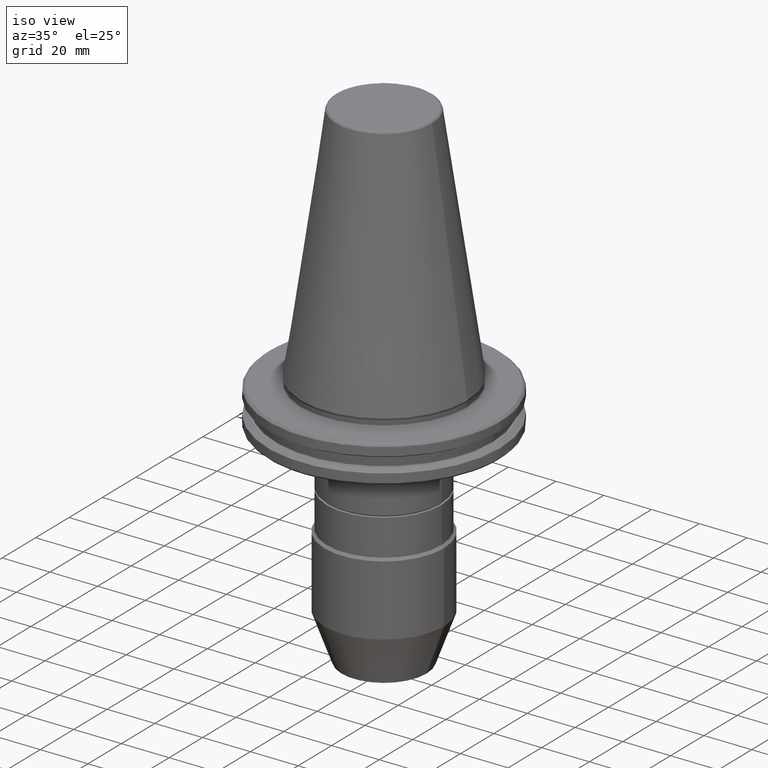
[diagram: clean part render]
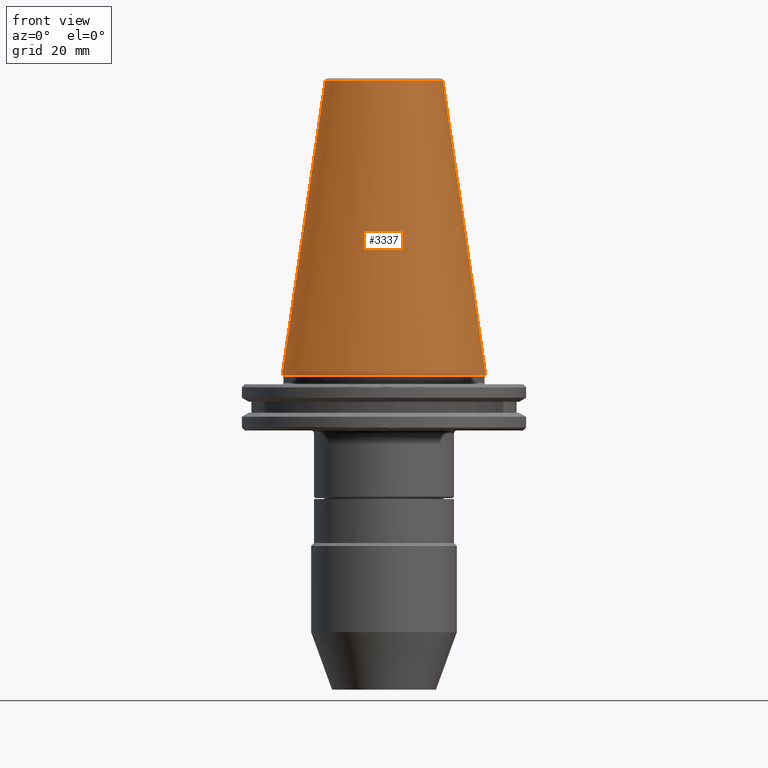
[diagram: tour spotlight — one face highlighted and labeled with its STEP entity id]
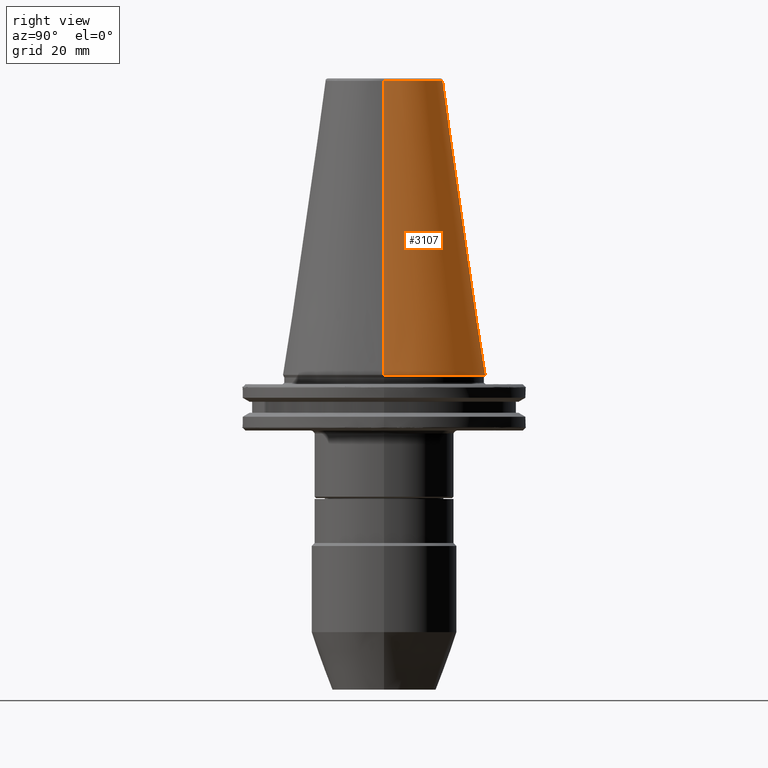
[diagram: tour spotlight — one face highlighted and labeled with its STEP entity id]
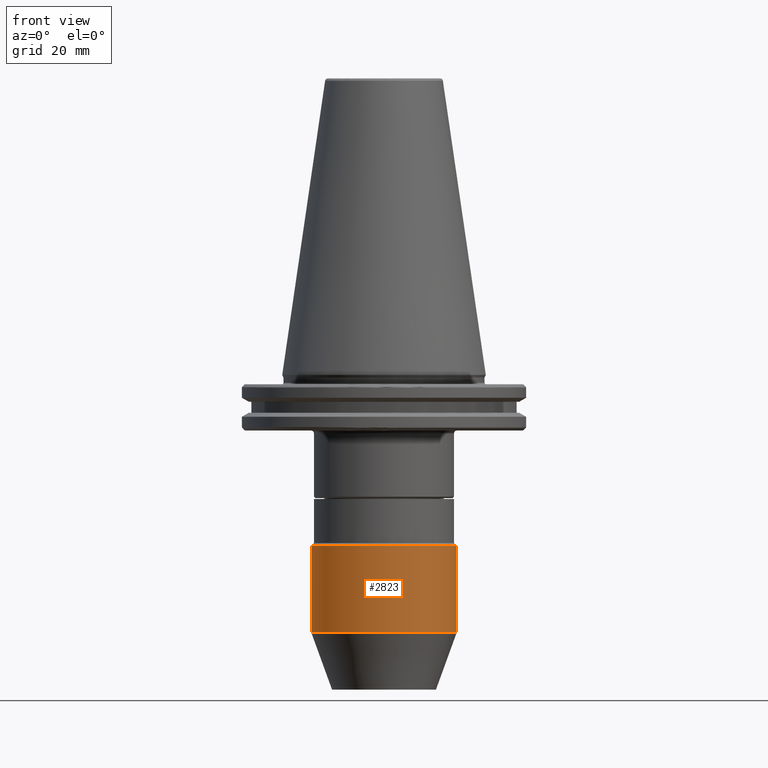
[diagram: tour spotlight — one face highlighted and labeled with its STEP entity id]
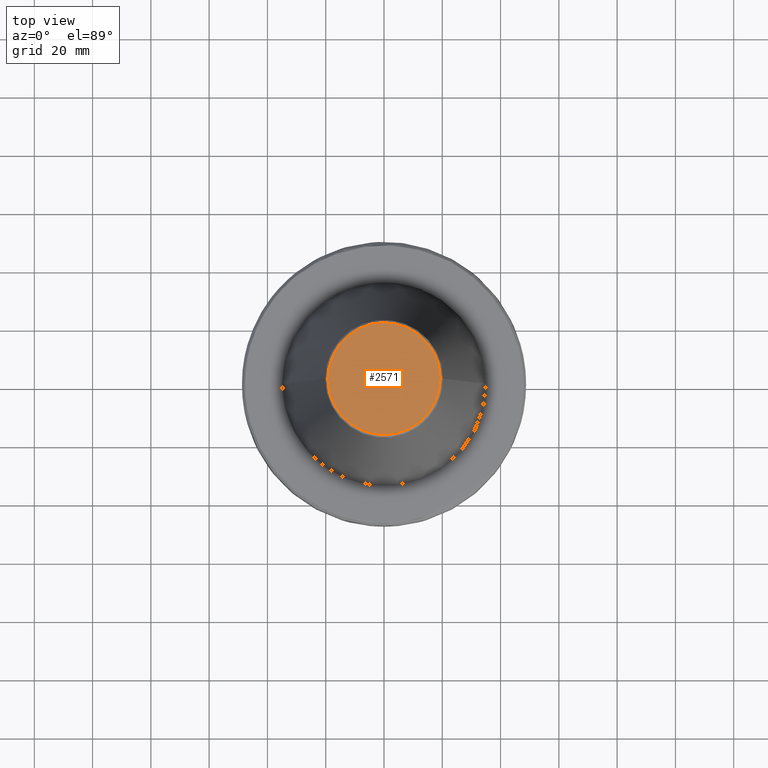
[diagram: tour spotlight — one face highlighted and labeled with its STEP entity id]
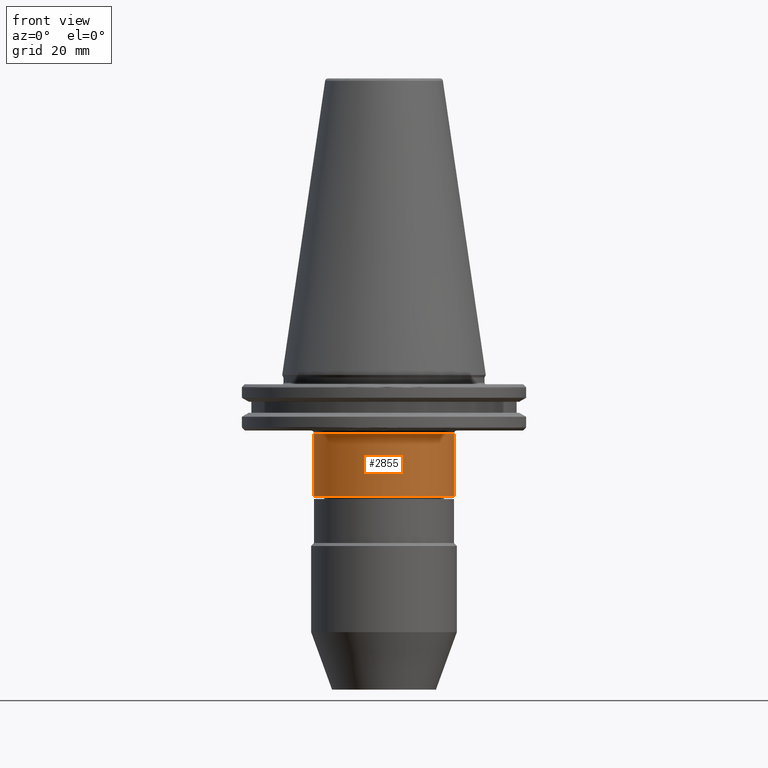
[diagram: tour spotlight — one face highlighted and labeled with its STEP entity id]
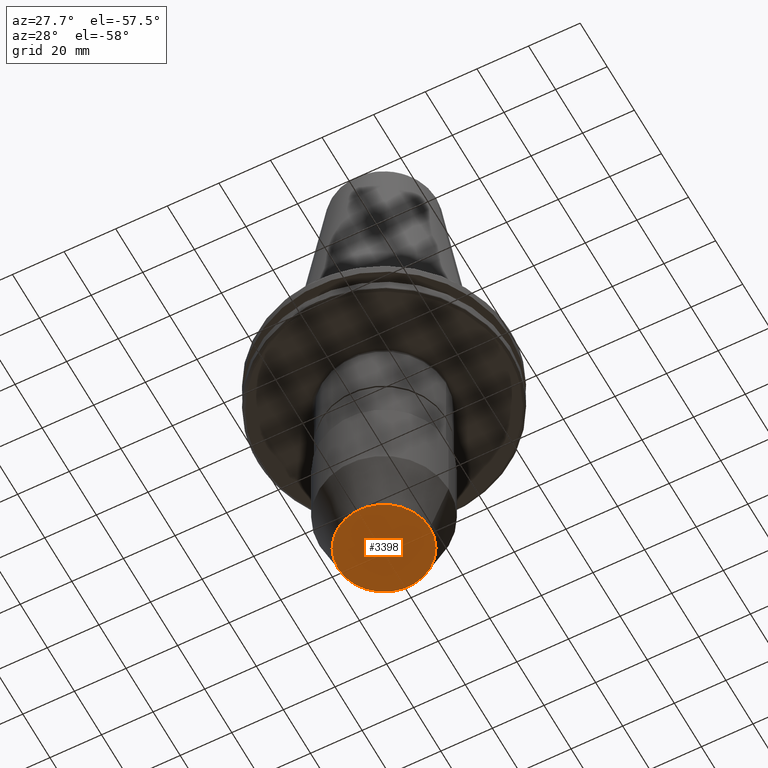
[diagram: tour spotlight — one face highlighted and labeled with its STEP entity id]
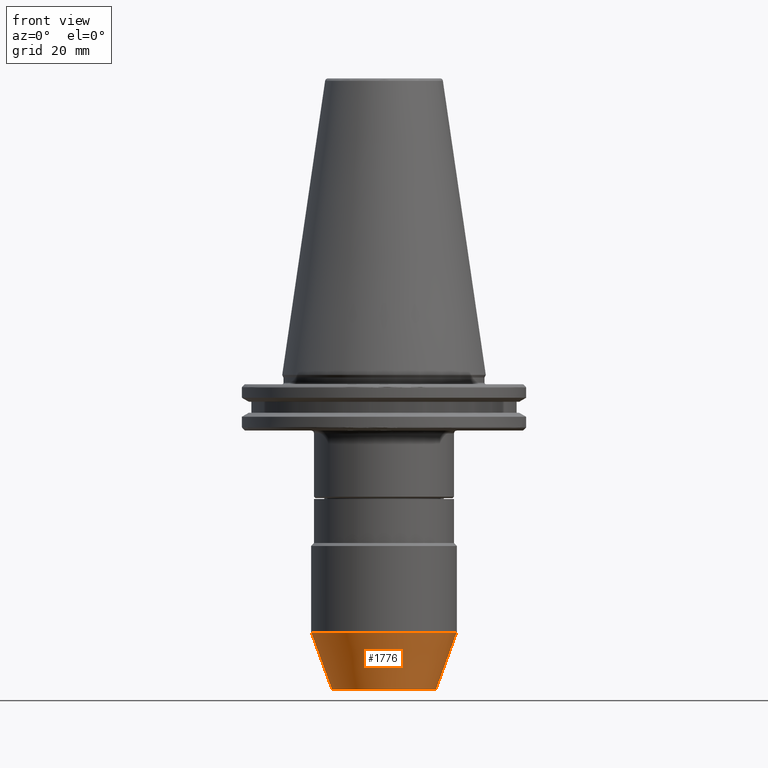
[diagram: tour spotlight — one face highlighted and labeled with its STEP entity id]
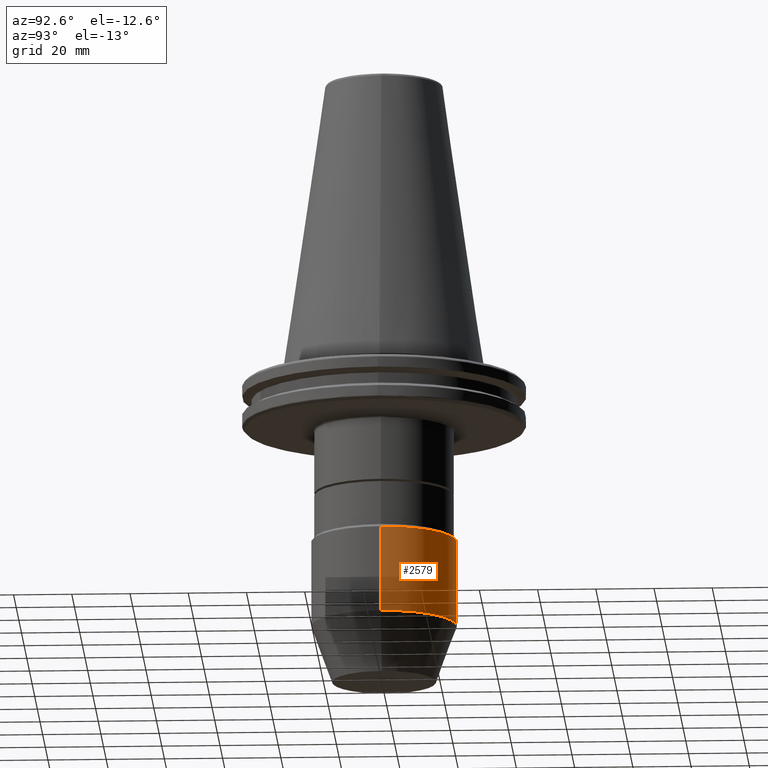
[diagram: tour spotlight — one face highlighted and labeled with its STEP entity id]
A machine part: a face-by-face anatomy tour. The part has 81 B-rep faces; the first image is the clean iso view, then the 8 largest visible faces are spotlighted one at a time (largest first), each with its STEP entity span.

Face 1 — front view, entity #3337. In plain terms, the highlighted conical surface has half-angle 8.297 deg.
Definition (entity closure, byte-faithful):
#48 = AXIS2_PLACEMENT_3D ( 'NONE', #1655, #2321, #1818 ) ;
#76 = VECTOR ( 'NONE', #1129, 1000.000000000000000 ) ;
#142 = VERTEX_POINT ( 'NONE', #1720 ) ;
#196 = VERTEX_POINT ( 'NONE', #3160 ) ;
#291 = DIRECTION ( 'NONE',  ( 0.1443082272673069400, 1.767266086135362400E-017, -0.9895327864921743500 ) ) ;
#339 = CARTESIAN_POINT ( 'NONE',  ( 34.92499999999999700, 4.277078946022130900E-015, -1.387778780781445700E-014 ) ) ;
#481 = EDGE_CURVE ( 'NONE', #196, #142, #1106, .T. ) ;
#482 = VERTEX_POINT ( 'NONE', #2219 ) ;
#867 = CIRCLE ( 'NONE', #1321, 34.92499999999999700 ) ;
#1075 = EDGE_CURVE ( 'NONE', #196, #482, #1705, .T. ) ;
#1106 = CIRCLE ( 'NONE', #48, 20.21110778703758000 ) ;
#1129 = DIRECTION ( 'NONE',  ( -0.1443082272673069400, 0.0000000000000000000, -0.9895327864921743500 ) ) ;
#1136 = CARTESIAN_POINT ( 'NONE',  ( -34.92499999999999700, 0.0000000000000000000, -1.387778780781445700E-014 ) ) ;
#1260 = DIRECTION ( 'NONE',  ( 0.0000000000000000000, 0.0000000000000000000, -1.000000000000000000 ) ) ;
#1321 = AXIS2_PLACEMENT_3D ( 'NONE', #1383, #1374, #1364 ) ;
#1364 = DIRECTION ( 'NONE',  ( -1.000000000000000000, 0.0000000000000000000, 0.0000000000000000000 ) ) ;
#1374 = DIRECTION ( 'NONE',  ( -0.0000000000000000000, -0.0000000000000000000, 1.000000000000000000 ) ) ;
#1383 = CARTESIAN_POINT ( 'NONE',  ( 0.0000000000000000000, 0.0000000000000000000, 0.0000000000000000000 ) ) ;
#1492 = LINE ( 'NONE', #1136, #76 ) ;
#1526 = CARTESIAN_POINT ( 'NONE',  ( 0.0000000000000000000, 0.0000000000000000000, -1.387778780781445700E-014 ) ) ;
#1655 = CARTESIAN_POINT ( 'NONE',  ( 0.0000000000000000000, 0.0000000000000000000, 100.8943082272673000 ) ) ;
#1705 = LINE ( 'NONE', #339, #3165 ) ;
#1720 = CARTESIAN_POINT ( 'NONE',  ( -20.21110778703758000, 0.0000000000000000000, 100.8943082272673000 ) ) ;
#1738 = ORIENTED_EDGE ( 'NONE', *, *, #2187, .T. ) ;
#1810 = DIRECTION ( 'NONE',  ( -1.000000000000000000, 0.0000000000000000000, 0.0000000000000000000 ) ) ;
#1818 = DIRECTION ( 'NONE',  ( -1.000000000000000000, 0.0000000000000000000, 0.0000000000000000000 ) ) ;
#2086 = EDGE_CURVE ( 'NONE', #3150, #482, #867, .T. ) ;
#2139 = ORIENTED_EDGE ( 'NONE', *, *, #2086, .T. ) ;
#2187 = EDGE_CURVE ( 'NONE', #142, #3150, #1492, .T. ) ;
#2219 = CARTESIAN_POINT ( 'NONE',  ( 34.92500000000000400, 0.0000000000000000000, 0.0000000000000000000 ) ) ;
#2321 = DIRECTION ( 'NONE',  ( 0.0000000000000000000, 0.0000000000000000000, -1.000000000000000000 ) ) ;
#2463 = CONICAL_SURFACE ( 'NONE', #2882, 34.92499999999999700, 0.1448138465474189400 ) ;
#2549 = FACE_OUTER_BOUND ( 'NONE', #2722, .T. ) ;
#2722 = EDGE_LOOP ( 'NONE', ( #2766, #2816, #1738, #2139 ) ) ;
#2766 = ORIENTED_EDGE ( 'NONE', *, *, #1075, .F. ) ;
#2816 = ORIENTED_EDGE ( 'NONE', *, *, #481, .T. ) ;
#2882 = AXIS2_PLACEMENT_3D ( 'NONE', #1526, #1260, #1810 ) ;
#3150 = VERTEX_POINT ( 'NONE', #3164 ) ;
#3160 = CARTESIAN_POINT ( 'NONE',  ( 20.21110778703758000, 3.376112895941951000E-015, 100.8943082272673000 ) ) ;
#3164 = CARTESIAN_POINT ( 'NONE',  ( -34.92500000000000400, 4.277078946022131700E-015, 0.0000000000000000000 ) ) ;
#3165 = VECTOR ( 'NONE', #291, 1000.000000000000000 ) ;
#3337 = ADVANCED_FACE ( 'NONE', ( #2549 ), #2463, .T. ) ;

Face 2 — right view, entity #3107. In plain terms, the highlighted conical surface has half-angle 8.297 deg.
Definition (entity closure, byte-faithful):
#29 = EDGE_LOOP ( 'NONE', ( #799, #2622, #141, #3115 ) ) ;
#76 = VECTOR ( 'NONE', #1129, 1000.000000000000000 ) ;
#141 = ORIENTED_EDGE ( 'NONE', *, *, #2544, .T. ) ;
#142 = VERTEX_POINT ( 'NONE', #1720 ) ;
#177 = FACE_OUTER_BOUND ( 'NONE', #29, .T. ) ;
#196 = VERTEX_POINT ( 'NONE', #3160 ) ;
#211 = DIRECTION ( 'NONE',  ( -1.000000000000000000, 0.0000000000000000000, 0.0000000000000000000 ) ) ;
#214 = DIRECTION ( 'NONE',  ( 0.0000000000000000000, 0.0000000000000000000, -1.000000000000000000 ) ) ;
#220 = CARTESIAN_POINT ( 'NONE',  ( 0.0000000000000000000, 0.0000000000000000000, 100.8943082272673000 ) ) ;
#291 = DIRECTION ( 'NONE',  ( 0.1443082272673069400, 1.767266086135362400E-017, -0.9895327864921743500 ) ) ;
#339 = CARTESIAN_POINT ( 'NONE',  ( 34.92499999999999700, 4.277078946022130900E-015, -1.387778780781445700E-014 ) ) ;
#391 = DIRECTION ( 'NONE',  ( -1.000000000000000000, 0.0000000000000000000, 0.0000000000000000000 ) ) ;
#402 = DIRECTION ( 'NONE',  ( -0.0000000000000000000, -0.0000000000000000000, 1.000000000000000000 ) ) ;
#415 = CARTESIAN_POINT ( 'NONE',  ( 0.0000000000000000000, 0.0000000000000000000, 0.0000000000000000000 ) ) ;
#482 = VERTEX_POINT ( 'NONE', #2219 ) ;
#793 = DIRECTION ( 'NONE',  ( -1.000000000000000000, 0.0000000000000000000, 0.0000000000000000000 ) ) ;
#799 = ORIENTED_EDGE ( 'NONE', *, *, #1137, .T. ) ;
#935 = AXIS2_PLACEMENT_3D ( 'NONE', #415, #402, #391 ) ;
#1028 = CIRCLE ( 'NONE', #2419, 20.21110778703758000 ) ;
#1063 = CARTESIAN_POINT ( 'NONE',  ( 0.0000000000000000000, 0.0000000000000000000, -1.387778780781445700E-014 ) ) ;
#1075 = EDGE_CURVE ( 'NONE', #196, #482, #1705, .T. ) ;
#1129 = DIRECTION ( 'NONE',  ( -0.1443082272673069400, 0.0000000000000000000, -0.9895327864921743500 ) ) ;
#1136 = CARTESIAN_POINT ( 'NONE',  ( -34.92499999999999700, 0.0000000000000000000, -1.387778780781445700E-014 ) ) ;
#1137 = EDGE_CURVE ( 'NONE', #142, #196, #1028, .T. ) ;
#1335 = DIRECTION ( 'NONE',  ( 0.0000000000000000000, 0.0000000000000000000, -1.000000000000000000 ) ) ;
#1492 = LINE ( 'NONE', #1136, #76 ) ;
#1511 = CONICAL_SURFACE ( 'NONE', #1828, 34.92499999999999700, 0.1448138465474189400 ) ;
#1705 = LINE ( 'NONE', #339, #3165 ) ;
#1720 = CARTESIAN_POINT ( 'NONE',  ( -20.21110778703758000, 0.0000000000000000000, 100.8943082272673000 ) ) ;
#1828 = AXIS2_PLACEMENT_3D ( 'NONE', #1063, #1335, #793 ) ;
#2187 = EDGE_CURVE ( 'NONE', #142, #3150, #1492, .T. ) ;
#2219 = CARTESIAN_POINT ( 'NONE',  ( 34.92500000000000400, 0.0000000000000000000, 0.0000000000000000000 ) ) ;
#2419 = AXIS2_PLACEMENT_3D ( 'NONE', #220, #214, #211 ) ;
#2544 = EDGE_CURVE ( 'NONE', #482, #3150, #3322, .T. ) ;
#2622 = ORIENTED_EDGE ( 'NONE', *, *, #1075, .T. ) ;
#3107 = ADVANCED_FACE ( 'NONE', ( #177 ), #1511, .T. ) ;
#3115 = ORIENTED_EDGE ( 'NONE', *, *, #2187, .F. ) ;
#3150 = VERTEX_POINT ( 'NONE', #3164 ) ;
#3160 = CARTESIAN_POINT ( 'NONE',  ( 20.21110778703758000, 3.376112895941951000E-015, 100.8943082272673000 ) ) ;
#3164 = CARTESIAN_POINT ( 'NONE',  ( -34.92500000000000400, 4.277078946022131700E-015, 0.0000000000000000000 ) ) ;
#3165 = VECTOR ( 'NONE', #291, 1000.000000000000000 ) ;
#3322 = CIRCLE ( 'NONE', #935, 34.92499999999999700 ) ;

Face 3 — front view, entity #2823. In plain terms, the highlighted cylindrical surface (partial cylindrical patch) has radius 25 mm, axis along (0, 0, 1).
Definition (entity closure, byte-faithful):
#53 = FACE_OUTER_BOUND ( 'NONE', #2826, .T. ) ;
#132 = EDGE_CURVE ( 'NONE', #1443, #1016, #2893, .T. ) ;
#137 = VECTOR ( 'NONE', #3223, 1000.000000000000000 ) ;
#187 = AXIS2_PLACEMENT_3D ( 'NONE', #551, #546, #542 ) ;
#249 = DIRECTION ( 'NONE',  ( 1.000000000000000000, 0.0000000000000000000, 0.0000000000000000000 ) ) ;
#317 = ORIENTED_EDGE ( 'NONE', *, *, #132, .T. ) ;
#348 = CARTESIAN_POINT ( 'NONE',  ( 25.00000000000000700, 0.0000000000000000000, -58.70000000000000300 ) ) ;
#449 = ORIENTED_EDGE ( 'NONE', *, *, #782, .F. ) ;
#542 = DIRECTION ( 'NONE',  ( -1.000000000000000000, 0.0000000000000000000, 0.0000000000000000000 ) ) ;
#546 = DIRECTION ( 'NONE',  ( -0.0000000000000000000, -0.0000000000000000000, 1.000000000000000000 ) ) ;
#547 = CARTESIAN_POINT ( 'NONE',  ( -25.00000000000000000, 3.061616997868383000E-015, 0.0000000000000000000 ) ) ;
#551 = CARTESIAN_POINT ( 'NONE',  ( 0.0000000000000000000, 0.0000000000000000000, -58.70000000000000300 ) ) ;
#603 = AXIS2_PLACEMENT_3D ( 'NONE', #3136, #2395, #2126 ) ;
#656 = VERTEX_POINT ( 'NONE', #1115 ) ;
#782 = EDGE_CURVE ( 'NONE', #656, #1016, #2047, .T. ) ;
#1016 = VERTEX_POINT ( 'NONE', #348 ) ;
#1059 = VERTEX_POINT ( 'NONE', #1726 ) ;
#1115 = CARTESIAN_POINT ( 'NONE',  ( -25.00000000000000700, 3.061616997868383800E-015, -58.70000000000000300 ) ) ;
#1443 = VERTEX_POINT ( 'NONE', #2539 ) ;
#1613 = VECTOR ( 'NONE', #1889, 1000.000000000000000 ) ;
#1726 = CARTESIAN_POINT ( 'NONE',  ( -25.00000000000000000, 3.061616997868383000E-015, -88.28684951541271200 ) ) ;
#1861 = DIRECTION ( 'NONE',  ( 0.0000000000000000000, 0.0000000000000000000, 1.000000000000000000 ) ) ;
#1889 = DIRECTION ( 'NONE',  ( 0.0000000000000000000, 0.0000000000000000000, 1.000000000000000000 ) ) ;
#1932 = ORIENTED_EDGE ( 'NONE', *, *, #2835, .T. ) ;
#2047 = CIRCLE ( 'NONE', #187, 25.00000000000000700 ) ;
#2126 = DIRECTION ( 'NONE',  ( 1.000000000000000000, 0.0000000000000000000, 0.0000000000000000000 ) ) ;
#2161 = AXIS2_PLACEMENT_3D ( 'NONE', #3449, #1861, #249 ) ;
#2173 = CARTESIAN_POINT ( 'NONE',  ( 25.00000000000000000, 0.0000000000000000000, 0.0000000000000000000 ) ) ;
#2395 = DIRECTION ( 'NONE',  ( 0.0000000000000000000, 0.0000000000000000000, 1.000000000000000000 ) ) ;
#2539 = CARTESIAN_POINT ( 'NONE',  ( 25.00000000000000000, 0.0000000000000000000, -88.28684951541271200 ) ) ;
#2748 = CYLINDRICAL_SURFACE ( 'NONE', #603, 25.00000000000000000 ) ;
#2823 = ADVANCED_FACE ( 'NONE', ( #53 ), #2748, .T. ) ;
#2826 = EDGE_LOOP ( 'NONE', ( #3194, #1932, #317, #449 ) ) ;
#2835 = EDGE_CURVE ( 'NONE', #1059, #1443, #3440, .T. ) ;
#2860 = LINE ( 'NONE', #547, #1613 ) ;
#2893 = LINE ( 'NONE', #2173, #137 ) ;
#3136 = CARTESIAN_POINT ( 'NONE',  ( 0.0000000000000000000, 0.0000000000000000000, 0.0000000000000000000 ) ) ;
#3194 = ORIENTED_EDGE ( 'NONE', *, *, #3258, .F. ) ;
#3223 = DIRECTION ( 'NONE',  ( 0.0000000000000000000, 0.0000000000000000000, 1.000000000000000000 ) ) ;
#3258 = EDGE_CURVE ( 'NONE', #1059, #656, #2860, .T. ) ;
#3440 = CIRCLE ( 'NONE', #2161, 25.00000000000000000 ) ;
#3449 = CARTESIAN_POINT ( 'NONE',  ( 0.0000000000000000000, 0.0000000000000000000, -88.28684951541271200 ) ) ;

Face 4 — top view, entity #2571. In plain terms, the highlighted planar face has unit normal (0, 0, 1).
Definition (entity closure, byte-faithful):
#64 = ORIENTED_EDGE ( 'NONE', *, *, #2520, .F. ) ;
#123 = DIRECTION ( 'NONE',  ( 1.000000000000000000, 0.0000000000000000000, -0.0000000000000000000 ) ) ;
#139 = DIRECTION ( 'NONE',  ( 0.0000000000000000000, 0.0000000000000000000, 1.000000000000000000 ) ) ;
#210 = CARTESIAN_POINT ( 'NONE',  ( 0.0000000000000000000, 7.346249770921763000E-014, 101.7500000000000000 ) ) ;
#414 = CARTESIAN_POINT ( 'NONE',  ( -19.22157500054540000, 2.378200593091452200E-015, 101.7499999999999900 ) ) ;
#422 = CARTESIAN_POINT ( 'NONE',  ( 19.22157500054540000, 0.0000000000000000000, 101.7499999999999900 ) ) ;
#461 = AXIS2_PLACEMENT_3D ( 'NONE', #210, #139, #123 ) ;
#498 = CARTESIAN_POINT ( 'NONE',  ( 19.22157500054540000, -38.44315000109079300, 101.7500000000000000 ) ) ;
#500 = PLANE ( 'NONE',  #461 ) ;
#534 =( BOUNDED_CURVE ( )  B_SPLINE_CURVE ( 3, ( #764, #896, #750, #739 ),
 .UNSPECIFIED., .F., .F. ) 
 B_SPLINE_CURVE_WITH_KNOTS ( ( 4, 4 ),
 ( 0.0000000000000000000, 1.000000000000000000 ),
 .UNSPECIFIED. ) 
 CURVE ( )  GEOMETRIC_REPRESENTATION_ITEM ( )  RATIONAL_B_SPLINE_CURVE ( ( 1.000000000000000000, 0.3333333333333333700, 0.3333333333333333700, 1.000000000000000000 ) ) 
 REPRESENTATION_ITEM ( '' )  );
#552 = CARTESIAN_POINT ( 'NONE',  ( -19.22157500054540000, -38.44315000109079300, 101.7500000000000000 ) ) ;
#739 = CARTESIAN_POINT ( 'NONE',  ( 19.22157500054540000, 0.0000000000000000000, 101.7499999999999900 ) ) ;
#750 = CARTESIAN_POINT ( 'NONE',  ( 19.22157500054540000, 38.44315000109079300, 101.7500000000000000 ) ) ;
#764 = CARTESIAN_POINT ( 'NONE',  ( -19.22157500054540000, 2.378200593091452200E-015, 101.7499999999999900 ) ) ;
#896 = CARTESIAN_POINT ( 'NONE',  ( -19.22157500054539600, 38.44315000109079300, 101.7500000000000000 ) ) ;
#1588 = CARTESIAN_POINT ( 'NONE',  ( -19.22157500054540000, 2.378200593091452200E-015, 101.7499999999999900 ) ) ;
#1694 = EDGE_CURVE ( 'NONE', #1962, #2061, #2767, .T. ) ;
#1962 = VERTEX_POINT ( 'NONE', #2459 ) ;
#2061 = VERTEX_POINT ( 'NONE', #1588 ) ;
#2459 = CARTESIAN_POINT ( 'NONE',  ( 19.22157500054540000, 0.0000000000000000000, 101.7499999999999900 ) ) ;
#2520 = EDGE_CURVE ( 'NONE', #2061, #1962, #534, .T. ) ;
#2571 = ADVANCED_FACE ( 'NONE', ( #3241 ), #500, .T. ) ;
#2681 = ORIENTED_EDGE ( 'NONE', *, *, #1694, .F. ) ;
#2767 =( BOUNDED_CURVE ( )  B_SPLINE_CURVE ( 3, ( #422, #498, #552, #414 ),
 .UNSPECIFIED., .F., .F. ) 
 B_SPLINE_CURVE_WITH_KNOTS ( ( 4, 4 ),
 ( 0.0000000000000000000, 1.000000000000000000 ),
 .UNSPECIFIED. ) 
 CURVE ( )  GEOMETRIC_REPRESENTATION_ITEM ( )  RATIONAL_B_SPLINE_CURVE ( ( 1.000000000000000000, 0.3333333333333333700, 0.3333333333333333700, 1.000000000000000000 ) ) 
 REPRESENTATION_ITEM ( '' )  );
#3006 = EDGE_LOOP ( 'NONE', ( #64, #2681 ) ) ;
#3241 = FACE_OUTER_BOUND ( 'NONE', #3006, .T. ) ;

Face 5 — front view, entity #2855. In plain terms, the highlighted cylindrical surface (partial cylindrical patch) has radius 24 mm, axis along (0, 0, 1).
Definition (entity closure, byte-faithful):
#221 = DIRECTION ( 'NONE',  ( 0.0000000000000000000, 0.0000000000000000000, 1.000000000000000000 ) ) ;
#236 = CARTESIAN_POINT ( 'NONE',  ( 24.00000000000000000, 0.0000000000000000000, 0.0000000000000000000 ) ) ;
#383 = ORIENTED_EDGE ( 'NONE', *, *, #2287, .T. ) ;
#444 = DIRECTION ( 'NONE',  ( 1.000000000000000000, 0.0000000000000000000, 0.0000000000000000000 ) ) ;
#456 = DIRECTION ( 'NONE',  ( 0.0000000000000000000, 0.0000000000000000000, 1.000000000000000000 ) ) ;
#468 = CARTESIAN_POINT ( 'NONE',  ( 0.0000000000000000000, 0.0000000000000000000, -41.79999999999998300 ) ) ;
#526 = CARTESIAN_POINT ( 'NONE',  ( 0.0000000000000000000, 0.0000000000000000000, 0.0000000000000000000 ) ) ;
#616 = CARTESIAN_POINT ( 'NONE',  ( 24.00000000000000000, 0.0000000000000000000, -41.79999999999998300 ) ) ;
#636 = LINE ( 'NONE', #2762, #2611 ) ;
#682 = AXIS2_PLACEMENT_3D ( 'NONE', #2644, #1008, #2887 ) ;
#779 = DIRECTION ( 'NONE',  ( 0.0000000000000000000, 0.0000000000000000000, 1.000000000000000000 ) ) ;
#852 = ORIENTED_EDGE ( 'NONE', *, *, #1407, .F. ) ;
#938 = VERTEX_POINT ( 'NONE', #616 ) ;
#1008 = DIRECTION ( 'NONE',  ( 0.0000000000000000000, 0.0000000000000000000, -1.000000000000000000 ) ) ;
#1157 = LINE ( 'NONE', #236, #2610 ) ;
#1385 = AXIS2_PLACEMENT_3D ( 'NONE', #526, #779, #2145 ) ;
#1407 = EDGE_CURVE ( 'NONE', #1551, #1813, #636, .T. ) ;
#1551 = VERTEX_POINT ( 'NONE', #2013 ) ;
#1573 = ORIENTED_EDGE ( 'NONE', *, *, #2979, .T. ) ;
#1762 = AXIS2_PLACEMENT_3D ( 'NONE', #468, #456, #444 ) ;
#1813 = VERTEX_POINT ( 'NONE', #3020 ) ;
#1831 = VERTEX_POINT ( 'NONE', #2974 ) ;
#1959 = CYLINDRICAL_SURFACE ( 'NONE', #1385, 24.00000000000000000 ) ;
#1980 = CIRCLE ( 'NONE', #1762, 24.00000000000000000 ) ;
#2012 = ORIENTED_EDGE ( 'NONE', *, *, #2330, .T. ) ;
#2013 = CARTESIAN_POINT ( 'NONE',  ( -24.00000000000000000, 2.939152317953647900E-015, -41.79999999999998300 ) ) ;
#2042 = FACE_OUTER_BOUND ( 'NONE', #2346, .T. ) ;
#2145 = DIRECTION ( 'NONE',  ( 1.000000000000000000, 0.0000000000000000000, 0.0000000000000000000 ) ) ;
#2287 = EDGE_CURVE ( 'NONE', #1551, #938, #1980, .T. ) ;
#2330 = EDGE_CURVE ( 'NONE', #938, #1831, #1157, .T. ) ;
#2346 = EDGE_LOOP ( 'NONE', ( #852, #383, #2012, #1573 ) ) ;
#2589 = CIRCLE ( 'NONE', #682, 24.00000000000000000 ) ;
#2610 = VECTOR ( 'NONE', #221, 1000.000000000000000 ) ;
#2611 = VECTOR ( 'NONE', #2790, 1000.000000000000000 ) ;
#2644 = CARTESIAN_POINT ( 'NONE',  ( 0.0000000000000000000, 0.0000000000000000000, -20.10000000000000900 ) ) ;
#2762 = CARTESIAN_POINT ( 'NONE',  ( -24.00000000000000000, 2.939152317953647900E-015, 0.0000000000000000000 ) ) ;
#2790 = DIRECTION ( 'NONE',  ( 0.0000000000000000000, 0.0000000000000000000, 1.000000000000000000 ) ) ;
#2855 = ADVANCED_FACE ( 'NONE', ( #2042 ), #1959, .T. ) ;
#2887 = DIRECTION ( 'NONE',  ( -1.000000000000000000, 0.0000000000000000000, 0.0000000000000000000 ) ) ;
#2974 = CARTESIAN_POINT ( 'NONE',  ( 24.00000000000000000, 0.0000000000000000000, -20.10000000000000900 ) ) ;
#2979 = EDGE_CURVE ( 'NONE', #1831, #1813, #2589, .T. ) ;
#3020 = CARTESIAN_POINT ( 'NONE',  ( -24.00000000000000000, 2.939152317953647900E-015, -20.10000000000000900 ) ) ;

Face 6 — auxiliary view, entity #3398. In plain terms, the highlighted planar face has unit normal (0, 0, -1).
Definition (entity closure, byte-faithful):
#241 = DIRECTION ( 'NONE',  ( -1.000000000000000000, 0.0000000000000000000, -0.0000000000000000000 ) ) ;
#295 = CARTESIAN_POINT ( 'NONE',  ( -17.82499999999999900, 2.622274958674270100E-015, -108.0000000000000000 ) ) ;
#347 = DIRECTION ( 'NONE',  ( 1.000000000000000000, 0.0000000000000000000, 0.0000000000000000000 ) ) ;
#350 = DIRECTION ( 'NONE',  ( 0.0000000000000000000, -0.0000000000000000000, 1.000000000000000000 ) ) ;
#357 = CARTESIAN_POINT ( 'NONE',  ( 0.0000000000000000000, 0.0000000000000000000, -108.0000000000000000 ) ) ;
#467 = DIRECTION ( 'NONE',  ( 1.000000000000000000, 0.0000000000000000000, 0.0000000000000000000 ) ) ;
#470 = DIRECTION ( 'NONE',  ( 0.0000000000000000000, -0.0000000000000000000, 1.000000000000000000 ) ) ;
#475 = CARTESIAN_POINT ( 'NONE',  ( 0.0000000000000000000, 0.0000000000000000000, -108.0000000000000000 ) ) ;
#510 = CARTESIAN_POINT ( 'NONE',  ( 0.0000000000000000000, 0.0000000000000000000, -108.0000000000000000 ) ) ;
#533 = CIRCLE ( 'NONE', #1300, 17.82499999999999900 ) ;
#849 = EDGE_CURVE ( 'NONE', #2472, #1108, #533, .T. ) ;
#919 = FACE_OUTER_BOUND ( 'NONE', #3415, .T. ) ;
#1108 = VERTEX_POINT ( 'NONE', #295 ) ;
#1300 = AXIS2_PLACEMENT_3D ( 'NONE', #475, #470, #467 ) ;
#1331 = CIRCLE ( 'NONE', #1470, 17.82499999999999900 ) ;
#1415 = AXIS2_PLACEMENT_3D ( 'NONE', #510, #1855, #241 ) ;
#1470 = AXIS2_PLACEMENT_3D ( 'NONE', #357, #350, #347 ) ;
#1557 = CARTESIAN_POINT ( 'NONE',  ( 17.82499999999999900, 0.0000000000000000000, -108.0000000000000000 ) ) ;
#1855 = DIRECTION ( 'NONE',  ( 0.0000000000000000000, 0.0000000000000000000, -1.000000000000000000 ) ) ;
#2006 = ORIENTED_EDGE ( 'NONE', *, *, #2313, .F. ) ;
#2313 = EDGE_CURVE ( 'NONE', #1108, #2472, #1331, .T. ) ;
#2472 = VERTEX_POINT ( 'NONE', #1557 ) ;
#2654 = PLANE ( 'NONE',  #1415 ) ;
#2903 = ORIENTED_EDGE ( 'NONE', *, *, #849, .F. ) ;
#3398 = ADVANCED_FACE ( 'NONE', ( #919 ), #2654, .T. ) ;
#3415 = EDGE_LOOP ( 'NONE', ( #2903, #2006 ) ) ;

Face 7 — front view, entity #1776. In plain terms, the highlighted conical surface has half-angle 20 deg.
Definition (entity closure, byte-faithful):
#188 = EDGE_LOOP ( 'NONE', ( #1606, #3111, #3033, #964 ) ) ;
#204 = LINE ( 'NONE', #786, #1637 ) ;
#249 = DIRECTION ( 'NONE',  ( 1.000000000000000000, 0.0000000000000000000, 0.0000000000000000000 ) ) ;
#295 = CARTESIAN_POINT ( 'NONE',  ( -17.82499999999999900, 2.622274958674270100E-015, -108.0000000000000000 ) ) ;
#347 = DIRECTION ( 'NONE',  ( 1.000000000000000000, 0.0000000000000000000, 0.0000000000000000000 ) ) ;
#350 = DIRECTION ( 'NONE',  ( 0.0000000000000000000, -0.0000000000000000000, 1.000000000000000000 ) ) ;
#357 = CARTESIAN_POINT ( 'NONE',  ( 0.0000000000000000000, 0.0000000000000000000, -108.0000000000000000 ) ) ;
#556 = LINE ( 'NONE', #2820, #2691 ) ;
#754 = DIRECTION ( 'NONE',  ( 0.3420201433256630500, 0.0000000000000000000, 0.9396926207859104300 ) ) ;
#786 = CARTESIAN_POINT ( 'NONE',  ( 25.00000000000000000, 0.0000000000000000000, -88.28684951541271200 ) ) ;
#964 = ORIENTED_EDGE ( 'NONE', *, *, #2835, .F. ) ;
#1059 = VERTEX_POINT ( 'NONE', #1726 ) ;
#1108 = VERTEX_POINT ( 'NONE', #295 ) ;
#1331 = CIRCLE ( 'NONE', #1470, 17.82499999999999900 ) ;
#1384 = EDGE_CURVE ( 'NONE', #1108, #1059, #556, .T. ) ;
#1443 = VERTEX_POINT ( 'NONE', #2539 ) ;
#1470 = AXIS2_PLACEMENT_3D ( 'NONE', #357, #350, #347 ) ;
#1557 = CARTESIAN_POINT ( 'NONE',  ( 17.82499999999999900, 0.0000000000000000000, -108.0000000000000000 ) ) ;
#1568 = EDGE_CURVE ( 'NONE', #2472, #1443, #204, .T. ) ;
#1606 = ORIENTED_EDGE ( 'NONE', *, *, #1384, .F. ) ;
#1637 = VECTOR ( 'NONE', #754, 1000.000000000000200 ) ;
#1726 = CARTESIAN_POINT ( 'NONE',  ( -25.00000000000000000, 3.061616997868383000E-015, -88.28684951541271200 ) ) ;
#1776 = ADVANCED_FACE ( 'NONE', ( #2203 ), #2733, .T. ) ;
#1861 = DIRECTION ( 'NONE',  ( 0.0000000000000000000, 0.0000000000000000000, 1.000000000000000000 ) ) ;
#2161 = AXIS2_PLACEMENT_3D ( 'NONE', #3449, #1861, #249 ) ;
#2203 = FACE_OUTER_BOUND ( 'NONE', #188, .T. ) ;
#2313 = EDGE_CURVE ( 'NONE', #1108, #2472, #1331, .T. ) ;
#2472 = VERTEX_POINT ( 'NONE', #1557 ) ;
#2539 = CARTESIAN_POINT ( 'NONE',  ( 25.00000000000000000, 0.0000000000000000000, -88.28684951541271200 ) ) ;
#2691 = VECTOR ( 'NONE', #2780, 1000.000000000000200 ) ;
#2733 = CONICAL_SURFACE ( 'NONE', #3256, 25.00000000000000000, 0.3490658503988599600 ) ;
#2780 = DIRECTION ( 'NONE',  ( -0.3420201433256630500, 4.188538737676922700E-017, 0.9396926207859104300 ) ) ;
#2820 = CARTESIAN_POINT ( 'NONE',  ( -25.00000000000000000, 3.061616997868383000E-015, -88.28684951541271200 ) ) ;
#2835 = EDGE_CURVE ( 'NONE', #1059, #1443, #3440, .T. ) ;
#3033 = ORIENTED_EDGE ( 'NONE', *, *, #1568, .T. ) ;
#3111 = ORIENTED_EDGE ( 'NONE', *, *, #2313, .T. ) ;
#3118 = CARTESIAN_POINT ( 'NONE',  ( 0.0000000000000000000, 0.0000000000000000000, -88.28684951541271200 ) ) ;
#3135 = DIRECTION ( 'NONE',  ( 0.0000000000000000000, -0.0000000000000000000, 1.000000000000000000 ) ) ;
#3170 = DIRECTION ( 'NONE',  ( 1.000000000000000000, 0.0000000000000000000, 0.0000000000000000000 ) ) ;
#3256 = AXIS2_PLACEMENT_3D ( 'NONE', #3118, #3135, #3170 ) ;
#3440 = CIRCLE ( 'NONE', #2161, 25.00000000000000000 ) ;
#3449 = CARTESIAN_POINT ( 'NONE',  ( 0.0000000000000000000, 0.0000000000000000000, -88.28684951541271200 ) ) ;

Face 8 — auxiliary view, entity #2579. In plain terms, the highlighted cylindrical surface (partial cylindrical patch) has radius 25 mm, axis along (0, 0, 1).
Definition (entity closure, byte-faithful):
#92 = CARTESIAN_POINT ( 'NONE',  ( 0.0000000000000000000, 0.0000000000000000000, 0.0000000000000000000 ) ) ;
#101 = DIRECTION ( 'NONE',  ( 0.0000000000000000000, 0.0000000000000000000, 1.000000000000000000 ) ) ;
#132 = EDGE_CURVE ( 'NONE', #1443, #1016, #2893, .T. ) ;
#137 = VECTOR ( 'NONE', #3223, 1000.000000000000000 ) ;
#153 = DIRECTION ( 'NONE',  ( 1.000000000000000000, 0.0000000000000000000, 0.0000000000000000000 ) ) ;
#257 = DIRECTION ( 'NONE',  ( -1.000000000000000000, 0.0000000000000000000, 0.0000000000000000000 ) ) ;
#260 = DIRECTION ( 'NONE',  ( -0.0000000000000000000, -0.0000000000000000000, 1.000000000000000000 ) ) ;
#264 = CARTESIAN_POINT ( 'NONE',  ( 0.0000000000000000000, 0.0000000000000000000, -58.70000000000000300 ) ) ;
#348 = CARTESIAN_POINT ( 'NONE',  ( 25.00000000000000700, 0.0000000000000000000, -58.70000000000000300 ) ) ;
#388 = AXIS2_PLACEMENT_3D ( 'NONE', #92, #101, #153 ) ;
#547 = CARTESIAN_POINT ( 'NONE',  ( -25.00000000000000000, 3.061616997868383000E-015, 0.0000000000000000000 ) ) ;
#656 = VERTEX_POINT ( 'NONE', #1115 ) ;
#722 = DIRECTION ( 'NONE',  ( 0.0000000000000000000, 0.0000000000000000000, 1.000000000000000000 ) ) ;
#1016 = VERTEX_POINT ( 'NONE', #348 ) ;
#1059 = VERTEX_POINT ( 'NONE', #1726 ) ;
#1096 = EDGE_CURVE ( 'NONE', #1016, #656, #1765, .T. ) ;
#1115 = CARTESIAN_POINT ( 'NONE',  ( -25.00000000000000700, 3.061616997868383800E-015, -58.70000000000000300 ) ) ;
#1304 = CIRCLE ( 'NONE', #2794, 25.00000000000000000 ) ;
#1397 = ORIENTED_EDGE ( 'NONE', *, *, #3258, .T. ) ;
#1401 = EDGE_LOOP ( 'NONE', ( #2226, #1397, #2011, #2252 ) ) ;
#1443 = VERTEX_POINT ( 'NONE', #2539 ) ;
#1613 = VECTOR ( 'NONE', #1889, 1000.000000000000000 ) ;
#1726 = CARTESIAN_POINT ( 'NONE',  ( -25.00000000000000000, 3.061616997868383000E-015, -88.28684951541271200 ) ) ;
#1765 = CIRCLE ( 'NONE', #3040, 25.00000000000000700 ) ;
#1889 = DIRECTION ( 'NONE',  ( 0.0000000000000000000, 0.0000000000000000000, 1.000000000000000000 ) ) ;
#2011 = ORIENTED_EDGE ( 'NONE', *, *, #1096, .F. ) ;
#2173 = CARTESIAN_POINT ( 'NONE',  ( 25.00000000000000000, 0.0000000000000000000, 0.0000000000000000000 ) ) ;
#2226 = ORIENTED_EDGE ( 'NONE', *, *, #2885, .T. ) ;
#2252 = ORIENTED_EDGE ( 'NONE', *, *, #132, .F. ) ;
#2347 = CARTESIAN_POINT ( 'NONE',  ( 0.0000000000000000000, 0.0000000000000000000, -88.28684951541271200 ) ) ;
#2467 = CYLINDRICAL_SURFACE ( 'NONE', #388, 25.00000000000000000 ) ;
#2539 = CARTESIAN_POINT ( 'NONE',  ( 25.00000000000000000, 0.0000000000000000000, -88.28684951541271200 ) ) ;
#2553 = FACE_OUTER_BOUND ( 'NONE', #1401, .T. ) ;
#2579 = ADVANCED_FACE ( 'NONE', ( #2553 ), #2467, .T. ) ;
#2614 = DIRECTION ( 'NONE',  ( 1.000000000000000000, 0.0000000000000000000, 0.0000000000000000000 ) ) ;
#2794 = AXIS2_PLACEMENT_3D ( 'NONE', #2347, #722, #2614 ) ;
#2860 = LINE ( 'NONE', #547, #1613 ) ;
#2885 = EDGE_CURVE ( 'NONE', #1443, #1059, #1304, .T. ) ;
#2893 = LINE ( 'NONE', #2173, #137 ) ;
#3040 = AXIS2_PLACEMENT_3D ( 'NONE', #264, #260, #257 ) ;
#3223 = DIRECTION ( 'NONE',  ( 0.0000000000000000000, 0.0000000000000000000, 1.000000000000000000 ) ) ;
#3258 = EDGE_CURVE ( 'NONE', #1059, #656, #2860, .T. ) ;